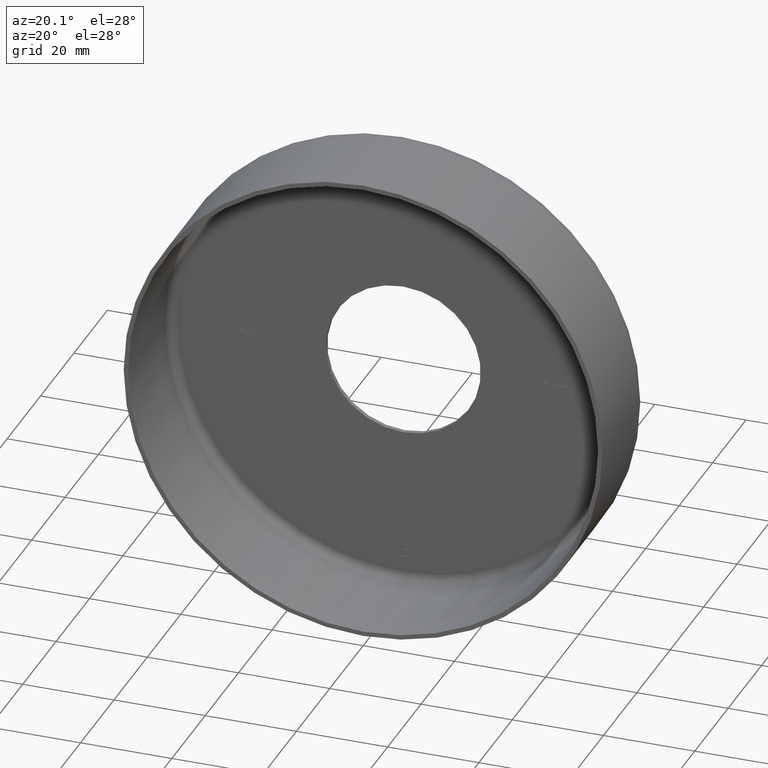
[diagram: clean part render]
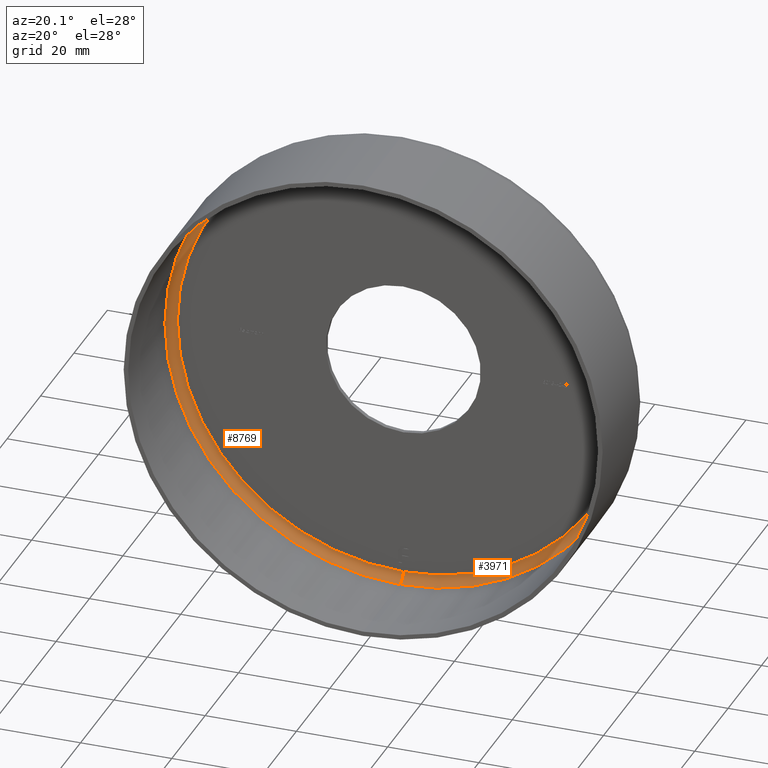
[diagram: same view with one multi-face feature highlighted, each face labeled with its STEP entity id]
A machine part, auxiliary view. The highlighted faces form ONE feature: a constant-radius fillet chain: 2 tangent blend faces with common blend radius 2 mm. The faces share edges in the B-rep.
Their STEP definitions:
[1] entity #3971 (Torus):
#44 = VERTEX_POINT ( 'NONE', #7276 ) ;
#196 = CARTESIAN_POINT ( 'NONE',  ( 6.062001655779398511E-15, 22.00000000000000355, 49.50000000000000000 ) ) ;
#2359 = AXIS2_PLACEMENT_3D ( 'NONE', #4065, #13772, #2996 ) ;
#2976 = DIRECTION ( 'NONE',  ( 0.000000000000000000, 0.000000000000000000, 1.000000000000000000 ) ) ;
#2996 = DIRECTION ( 'NONE',  ( 0.000000000000000000, 0.000000000000000000, -1.000000000000000000 ) ) ;
#3006 = AXIS2_PLACEMENT_3D ( 'NONE', #8621, #12237, #7553 ) ;
#3076 = CIRCLE ( 'NONE', #8857, 2.000000000000001776 ) ;
#3744 = EDGE_LOOP ( 'NONE', ( #10764, #15448, #12293, #8402 ) ) ;
#3947 = CIRCLE ( 'NONE', #4271, 51.50000000000000711 ) ;
#3971 = ADVANCED_FACE ( 'NONE', ( #4263 ), #13394, .F. ) ;
#4065 = CARTESIAN_POINT ( 'NONE',  ( 0.000000000000000000, 22.00000000000000355, 0.000000000000000000 ) ) ;
#4137 = VERTEX_POINT ( 'NONE', #5760 ) ;
#4263 = FACE_OUTER_BOUND ( 'NONE', #3744, .T. ) ;
#4271 = AXIS2_PLACEMENT_3D ( 'NONE', #5624, #4727, #15423 ) ;
#4727 = DIRECTION ( 'NONE',  ( -0.000000000000000000, -1.000000000000000000, -0.000000000000000000 ) ) ;
#5624 = CARTESIAN_POINT ( 'NONE',  ( 0.000000000000000000, 22.00000000000000355, 0.000000000000000000 ) ) ;
#5760 = CARTESIAN_POINT ( 'NONE',  ( 6.184466335694133659E-15, 24.00000000000000000, 49.50000000000000000 ) ) ;
#6041 = CIRCLE ( 'NONE', #14676, 2.000000000000001776 ) ;
#6609 = CIRCLE ( 'NONE', #3006, 49.50000000000000000 ) ;
#7276 = CARTESIAN_POINT ( 'NONE',  ( 0.000000000000000000, 24.00000000000000000, -49.50000000000000000 ) ) ;
#7430 = VERTEX_POINT ( 'NONE', #11869 ) ;
#7503 = DIRECTION ( 'NONE',  ( 1.000000000000000000, 0.000000000000000000, -1.224646799147353207E-16 ) ) ;
#7553 = DIRECTION ( 'NONE',  ( 0.000000000000000000, 0.000000000000000000, -1.000000000000000000 ) ) ;
#7810 = DIRECTION ( 'NONE',  ( -1.000000000000000000, 0.000000000000000000, 0.000000000000000000 ) ) ;
#8402 = ORIENTED_EDGE ( 'NONE', *, *, #9347, .T. ) ;
#8621 = CARTESIAN_POINT ( 'NONE',  ( 0.000000000000000000, 24.00000000000000000, 0.000000000000000000 ) ) ;
#8857 = AXIS2_PLACEMENT_3D ( 'NONE', #196, #7503, #9925 ) ;
#9347 = EDGE_CURVE ( 'NONE', #14006, #7430, #3947, .T. ) ;
#9925 = DIRECTION ( 'NONE',  ( -1.224646799147353454E-16, 0.000000000000000000, -1.000000000000000000 ) ) ;
#10764 = ORIENTED_EDGE ( 'NONE', *, *, #13606, .F. ) ;
#11869 = CARTESIAN_POINT ( 'NONE',  ( 6.306931015608869596E-15, 22.00000000000000355, 51.50000000000000711 ) ) ;
#12237 = DIRECTION ( 'NONE',  ( -0.000000000000000000, -1.000000000000000000, -0.000000000000000000 ) ) ;
#12293 = ORIENTED_EDGE ( 'NONE', *, *, #13709, .T. ) ;
#12570 = CARTESIAN_POINT ( 'NONE',  ( 0.000000000000000000, 22.00000000000000355, -49.50000000000000000 ) ) ;
#13394 = TOROIDAL_SURFACE ( 'NONE', #2359, 49.50000000000000000, 2.000000000000000000 ) ;
#13418 = CARTESIAN_POINT ( 'NONE',  ( 0.000000000000000000, 22.00000000000000355, -51.50000000000000711 ) ) ;
#13606 = EDGE_CURVE ( 'NONE', #4137, #7430, #3076, .T. ) ;
#13665 = EDGE_CURVE ( 'NONE', #44, #4137, #6609, .T. ) ;
#13709 = EDGE_CURVE ( 'NONE', #44, #14006, #6041, .T. ) ;
#13772 = DIRECTION ( 'NONE',  ( -0.000000000000000000, -1.000000000000000000, -0.000000000000000000 ) ) ;
#14006 = VERTEX_POINT ( 'NONE', #13418 ) ;
#14676 = AXIS2_PLACEMENT_3D ( 'NONE', #12570, #7810, #2976 ) ;
#15423 = DIRECTION ( 'NONE',  ( 0.000000000000000000, 0.000000000000000000, -1.000000000000000000 ) ) ;
#15448 = ORIENTED_EDGE ( 'NONE', *, *, #13665, .F. ) ;
[2] entity #8769 (Torus):
#44 = VERTEX_POINT ( 'NONE', #7276 ) ;
#196 = CARTESIAN_POINT ( 'NONE',  ( 6.062001655779398511E-15, 22.00000000000000355, 49.50000000000000000 ) ) ;
#897 = EDGE_LOOP ( 'NONE', ( #7668, #7386, #3041, #1193 ) ) ;
#986 = DIRECTION ( 'NONE',  ( -0.000000000000000000, -1.000000000000000000, -0.000000000000000000 ) ) ;
#1016 = DIRECTION ( 'NONE',  ( 0.000000000000000000, 0.000000000000000000, -1.000000000000000000 ) ) ;
#1193 = ORIENTED_EDGE ( 'NONE', *, *, #13709, .F. ) ;
#1837 = DIRECTION ( 'NONE',  ( -0.000000000000000000, -1.000000000000000000, -0.000000000000000000 ) ) ;
#2976 = DIRECTION ( 'NONE',  ( 0.000000000000000000, 0.000000000000000000, 1.000000000000000000 ) ) ;
#3041 = ORIENTED_EDGE ( 'NONE', *, *, #11274, .T. ) ;
#3076 = CIRCLE ( 'NONE', #8857, 2.000000000000001776 ) ;
#3359 = AXIS2_PLACEMENT_3D ( 'NONE', #11769, #986, #15318 ) ;
#4137 = VERTEX_POINT ( 'NONE', #5760 ) ;
#4600 = CARTESIAN_POINT ( 'NONE',  ( 0.000000000000000000, 22.00000000000000355, 0.000000000000000000 ) ) ;
#5124 = EDGE_CURVE ( 'NONE', #4137, #44, #12452, .T. ) ;
#5477 = TOROIDAL_SURFACE ( 'NONE', #6146, 49.50000000000000000, 2.000000000000000000 ) ;
#5750 = DIRECTION ( 'NONE',  ( -0.000000000000000000, -1.000000000000000000, -0.000000000000000000 ) ) ;
#5760 = CARTESIAN_POINT ( 'NONE',  ( 6.184466335694133659E-15, 24.00000000000000000, 49.50000000000000000 ) ) ;
#6041 = CIRCLE ( 'NONE', #14676, 2.000000000000001776 ) ;
#6146 = AXIS2_PLACEMENT_3D ( 'NONE', #4600, #5750, #1016 ) ;
#6786 = AXIS2_PLACEMENT_3D ( 'NONE', #6793, #1837, #13897 ) ;
#6793 = CARTESIAN_POINT ( 'NONE',  ( 0.000000000000000000, 22.00000000000000355, 0.000000000000000000 ) ) ;
#7276 = CARTESIAN_POINT ( 'NONE',  ( 0.000000000000000000, 24.00000000000000000, -49.50000000000000000 ) ) ;
#7386 = ORIENTED_EDGE ( 'NONE', *, *, #13606, .T. ) ;
#7430 = VERTEX_POINT ( 'NONE', #11869 ) ;
#7503 = DIRECTION ( 'NONE',  ( 1.000000000000000000, 0.000000000000000000, -1.224646799147353207E-16 ) ) ;
#7668 = ORIENTED_EDGE ( 'NONE', *, *, #5124, .F. ) ;
#7810 = DIRECTION ( 'NONE',  ( -1.000000000000000000, 0.000000000000000000, 0.000000000000000000 ) ) ;
#8769 = ADVANCED_FACE ( 'NONE', ( #9006 ), #5477, .F. ) ;
#8857 = AXIS2_PLACEMENT_3D ( 'NONE', #196, #7503, #9925 ) ;
#9006 = FACE_OUTER_BOUND ( 'NONE', #897, .T. ) ;
#9925 = DIRECTION ( 'NONE',  ( -1.224646799147353454E-16, 0.000000000000000000, -1.000000000000000000 ) ) ;
#10630 = CIRCLE ( 'NONE', #6786, 51.50000000000000711 ) ;
#11274 = EDGE_CURVE ( 'NONE', #7430, #14006, #10630, .T. ) ;
#11769 = CARTESIAN_POINT ( 'NONE',  ( 0.000000000000000000, 24.00000000000000000, 0.000000000000000000 ) ) ;
#11869 = CARTESIAN_POINT ( 'NONE',  ( 6.306931015608869596E-15, 22.00000000000000355, 51.50000000000000711 ) ) ;
#12452 = CIRCLE ( 'NONE', #3359, 49.50000000000000000 ) ;
#12570 = CARTESIAN_POINT ( 'NONE',  ( 0.000000000000000000, 22.00000000000000355, -49.50000000000000000 ) ) ;
#13418 = CARTESIAN_POINT ( 'NONE',  ( 0.000000000000000000, 22.00000000000000355, -51.50000000000000711 ) ) ;
#13606 = EDGE_CURVE ( 'NONE', #4137, #7430, #3076, .T. ) ;
#13709 = EDGE_CURVE ( 'NONE', #44, #14006, #6041, .T. ) ;
#13897 = DIRECTION ( 'NONE',  ( 0.000000000000000000, 0.000000000000000000, -1.000000000000000000 ) ) ;
#14006 = VERTEX_POINT ( 'NONE', #13418 ) ;
#14676 = AXIS2_PLACEMENT_3D ( 'NONE', #12570, #7810, #2976 ) ;
#15318 = DIRECTION ( 'NONE',  ( 0.000000000000000000, 0.000000000000000000, -1.000000000000000000 ) ) ;